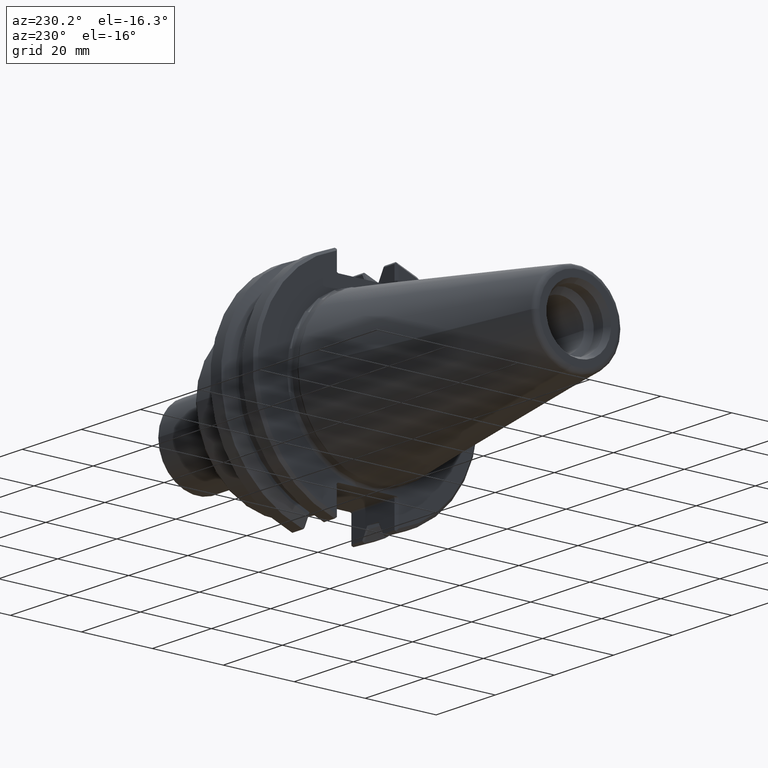
[diagram: clean part render]
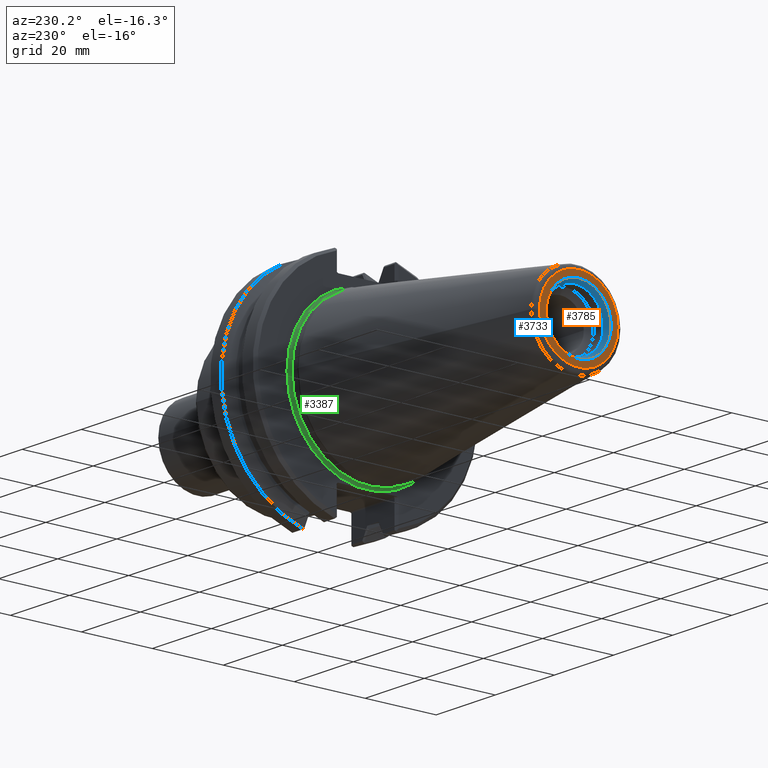
[diagram: same view with three faces highlighted in distinct colors, each labeled with its STEP entity id]
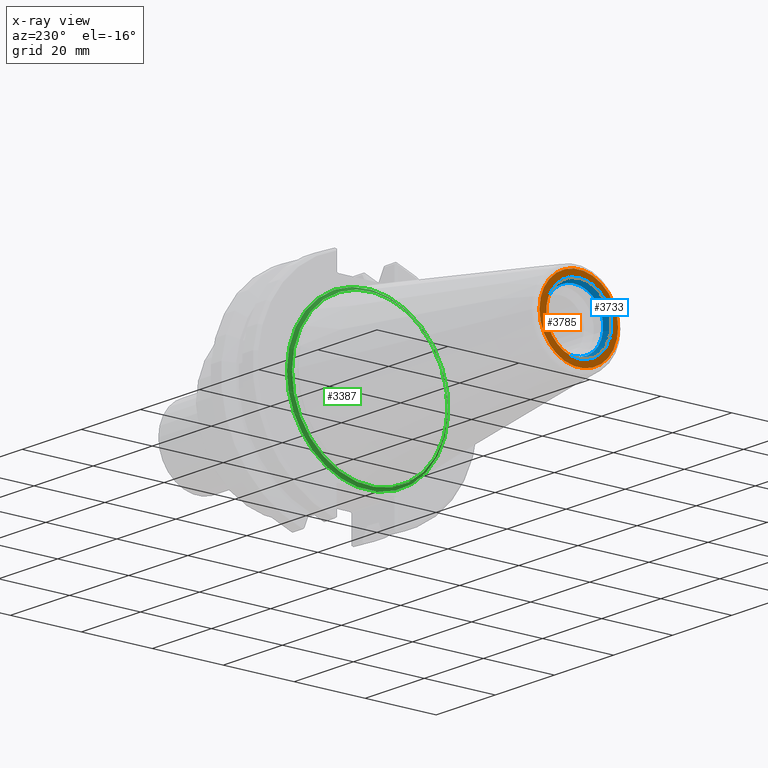
[diagram: x-ray of the same camera — body ghosted, the three highlighted faces saturated]
A machine part, auxiliary view with three faces highlighted in distinct colors.
The next image is the same camera in x-ray (body ghosted, the three faces saturated) — at least one of them is partly hidden behind the body in this view.
Their STEP definitions:

[orange] entity #3785 — the highlighted planar face has unit normal (-1, 0, 0).
#3711=CARTESIAN_POINT('',(-2.687000000000001,-4.739001E-036,0.36));
#3712=VERTEX_POINT('',#3711);
#3713=CARTESIAN_POINT('',(-2.687000000000001,-4.739001E-036,0.0));
#3714=DIRECTION('',(1.0,0.0,0.0));
#3715=DIRECTION('',(0.0,0.0,1.0));
#3716=AXIS2_PLACEMENT_3D('',#3713,#3714,#3715);
#3717=CIRCLE('',#3716,0.36);
#3718=EDGE_CURVE('',#3712,#3712,#3717,.T.);
#3751=CARTESIAN_POINT('',(-2.687000000000001,0.436456459409101,0.0));
#3752=VERTEX_POINT('',#3751);
#3753=CARTESIAN_POINT('',(-2.687000000000001,-4.739001E-036,0.0));
#3754=DIRECTION('',(1.0,0.0,0.0));
#3755=DIRECTION('',(0.0,-1.0,0.0));
#3756=AXIS2_PLACEMENT_3D('',#3753,#3754,#3755);
#3757=CIRCLE('',#3756,0.436456459409101);
#3758=EDGE_CURVE('',#3752,#3752,#3757,.T.);
#3774=CARTESIAN_POINT('',(-2.687000000000001,0.241576388285061,0.0));
#3775=DIRECTION('',(-1.0,0.0,0.0));
#3776=DIRECTION('',(0.0,0.0,1.0));
#3777=AXIS2_PLACEMENT_3D('',#3774,#3775,#3776);
#3778=PLANE('',#3777);
#3779=ORIENTED_EDGE('',*,*,#3758,.F.);
#3780=EDGE_LOOP('',(#3779));
#3781=FACE_OUTER_BOUND('',#3780,.T.);
#3782=ORIENTED_EDGE('',*,*,#3718,.T.);
#3783=EDGE_LOOP('',(#3782));
#3784=FACE_BOUND('',#3783,.T.);
#3785=ADVANCED_FACE('',(#3781,#3784),#3778,.T.);

[blue] entity #3733 — the highlighted conical surface has half-angle 30 deg.
#3706=CARTESIAN_POINT('',(-2.655823085463761,-4.702672E-036,0.0));
#3707=DIRECTION('',(-1.0,-1.165233E-036,0.0));
#3708=DIRECTION('',(0.0,0.0,1.0));
#3709=AXIS2_PLACEMENT_3D('',#3706,#3707,#3708);
#3710=CONICAL_SURFACE('',#3709,0.342,30.000000000000004);
#3711=CARTESIAN_POINT('',(-2.687000000000001,-4.739001E-036,0.36));
#3712=VERTEX_POINT('',#3711);
#3713=CARTESIAN_POINT('',(-2.687000000000001,-4.739001E-036,0.0));
#3714=DIRECTION('',(1.0,0.0,0.0));
#3715=DIRECTION('',(0.0,0.0,1.0));
#3716=AXIS2_PLACEMENT_3D('',#3713,#3714,#3715);
#3717=CIRCLE('',#3716,0.36);
#3718=EDGE_CURVE('',#3712,#3712,#3717,.T.);
#3719=ORIENTED_EDGE('',*,*,#3718,.F.);
#3720=EDGE_LOOP('',(#3719));
#3721=FACE_OUTER_BOUND('',#3720,.T.);
#3722=CARTESIAN_POINT('',(-2.624646170927521,-4.666344E-036,0.324));
#3723=VERTEX_POINT('',#3722);
#3724=CARTESIAN_POINT('',(-2.624646170927521,-4.666344E-036,0.0));
#3725=DIRECTION('',(-1.0,0.0,0.0));
#3726=DIRECTION('',(0.0,0.0,1.0));
#3727=AXIS2_PLACEMENT_3D('',#3724,#3725,#3726);
#3728=CIRCLE('',#3727,0.324);
#3729=EDGE_CURVE('',#3723,#3723,#3728,.T.);
#3730=ORIENTED_EDGE('',*,*,#3729,.F.);
#3731=EDGE_LOOP('',(#3730));
#3732=FACE_BOUND('',#3731,.T.);
#3733=ADVANCED_FACE('',(#3721,#3732),#3710,.F.);

[green] entity #3387 — the highlighted toroidal blend (fillet) surface has major radius 22.733 mm and minor (blend) radius 0.762 mm.
#3344=CARTESIAN_POINT('',(0.095,0.0,0.0));
#3345=DIRECTION('',(-1.0,-1.165233E-036,0.0));
#3346=DIRECTION('',(0.0,0.0,1.0));
#3347=AXIS2_PLACEMENT_3D('',#3344,#3345,#3346);
#3348=TOROIDAL_SURFACE('',#3347,0.895,0.03);
#3349=CARTESIAN_POINT('',(0.125,-0.11171839597846,-0.888));
#3350=VERTEX_POINT('',#3349);
#3351=CARTESIAN_POINT('',(0.125,0.11171839597846,-0.888));
#3352=VERTEX_POINT('',#3351);
#3353=CARTESIAN_POINT('',(0.125,0.11171839597846,-0.888));
#3354=CARTESIAN_POINT('',(0.125,0.101382060526646,-0.888));
#3355=CARTESIAN_POINT('',(0.12490012078969,0.088978860126441,-0.888));
#3356=CARTESIAN_POINT('',(0.124535784579865,0.054067341164243,-0.888));
#3357=CARTESIAN_POINT('',(0.12417190429163,0.024577084562869,-0.888));
#3358=CARTESIAN_POINT('',(0.12417190429163,3.399205E-038,-0.888));
#3359=CARTESIAN_POINT('',(0.12417190429163,-0.024577084562869,-0.888));
#3360=CARTESIAN_POINT('',(0.124535784579865,-0.054067341164243,-0.888));
#3361=CARTESIAN_POINT('',(0.12490012078969,-0.088978860126441,-0.888));
#3362=CARTESIAN_POINT('',(0.125,-0.101382060526646,-0.888));
#3363=CARTESIAN_POINT('',(0.125,-0.11171839597846,-0.888));
#3364=B_SPLINE_CURVE_WITH_KNOTS('',3,(#3353,#3354,#3355,#3356,#3357,#3358,#3359,#3360,#3361,#3362,#3363),.UNSPECIFIED.,.F.,.U.,(4,2,3,2,4),(2.310521099154615,2.389283975297438,2.576561359666502,2.763838744035566,2.842601620178389),.UNSPECIFIED.);
#3365=EDGE_CURVE('',#3350,#3352,#3364,.F.);
#3366=ORIENTED_EDGE('',*,*,#3365,.F.);
#3367=CARTESIAN_POINT('',(0.125,3.495698E-038,0.0));
#3368=DIRECTION('',(-1.0,0.0,0.0));
#3369=DIRECTION('',(0.0,-1.0,0.0));
#3370=AXIS2_PLACEMENT_3D('',#3367,#3368,#3369);
#3371=CIRCLE('',#3370,0.895);
#3372=EDGE_CURVE('',#3350,#3352,#3371,.T.);
#3373=ORIENTED_EDGE('',*,*,#3372,.T.);
#3374=EDGE_LOOP('',(#3366,#3373));
#3375=FACE_OUTER_BOUND('',#3374,.T.);
#3376=CARTESIAN_POINT('',(0.095,0.865,2.118569E-016));
#3377=VERTEX_POINT('',#3376);
#3378=CARTESIAN_POINT('',(0.095,0.0,0.0));
#3379=DIRECTION('',(1.0,0.0,0.0));
#3380=DIRECTION('',(0.0,-1.0,0.0));
#3381=AXIS2_PLACEMENT_3D('',#3378,#3379,#3380);
#3382=CIRCLE('',#3381,0.865);
#3383=EDGE_CURVE('',#3377,#3377,#3382,.T.);
#3384=ORIENTED_EDGE('',*,*,#3383,.T.);
#3385=EDGE_LOOP('',(#3384));
#3386=FACE_BOUND('',#3385,.T.);
#3387=ADVANCED_FACE('',(#3375,#3386),#3348,.F.);